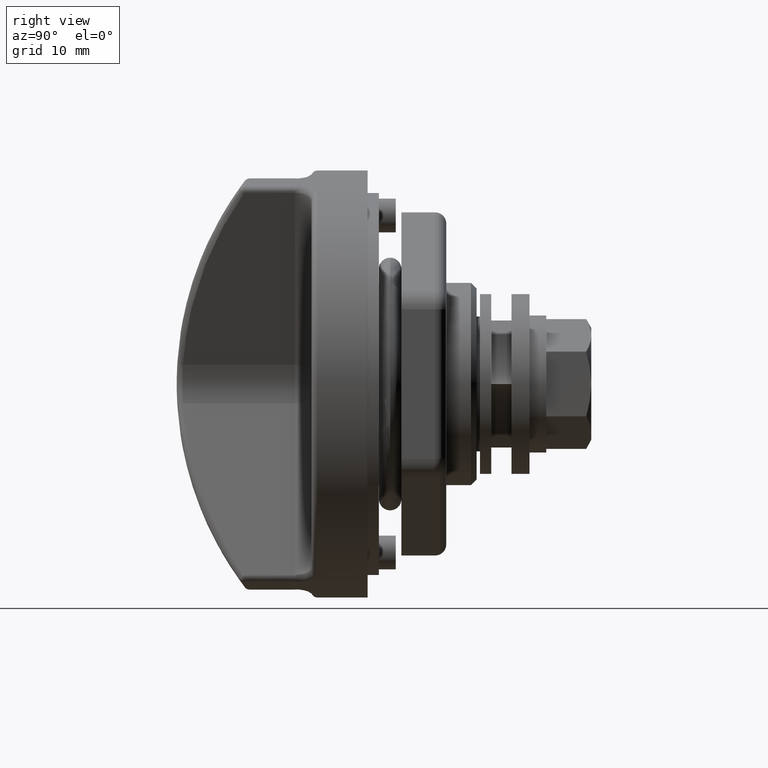
[diagram: clean part render]
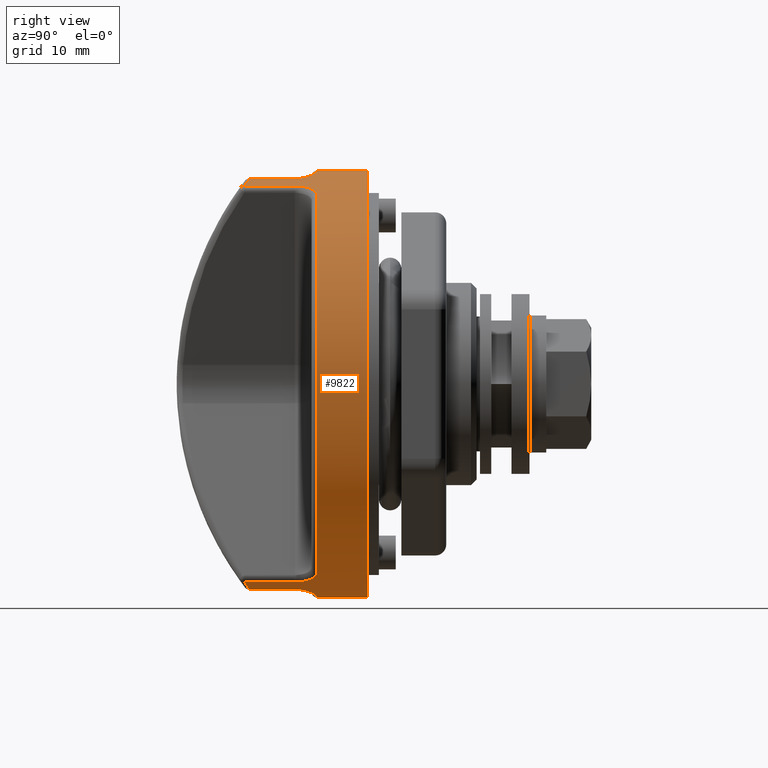
[diagram: same view with one face highlighted and labeled with its STEP entity id]
A machine part, right view. The second image highlights one B-rep face of the part: STEP entity #9822.
In plain terms, the highlighted cylindrical surface (partial cylindrical patch) has radius 19 mm, axis along (0, -1, 0).
Its self-contained STEP definition (entity closure, byte-faithful):
#7786 = CARTESIAN_POINT ( 'NONE',  ( -6.500000000000000000, -5.172454210636960400, 18.28238817657210200 ) ) ;
#7824 = DIRECTION ( 'NONE',  ( -1.000000000000000000, 0.0000000000000000000, 0.0000000000000000000 ) ) ;
#7825 = VECTOR ( 'NONE', #7824, 1000.000000000000000 ) ;
#7826 = CARTESIAN_POINT ( 'NONE',  ( 0.0000000000000000000, -5.172454210636949800, 18.28238817657210200 ) ) ;
#7827 = LINE ( 'NONE', #7826, #7825 ) ;
#7828 = CARTESIAN_POINT ( 'NONE',  ( -10.52370485962723900, -5.172454210636949800, 18.28238817657210200 ) ) ;
#7863 = CARTESIAN_POINT ( 'NONE',  ( -4.500000000000000000, 2.326828918379971000E-015, -19.00000000000000000 ) ) ;
#7926 = CARTESIAN_POINT ( 'NONE',  ( -4.499999999999949400, -1.057980804398780000, -18.97052125318445100 ) ) ;
#7927 = DIRECTION ( 'NONE',  ( 0.0000000000000000000, 0.0000000000000000000, -1.000000000000000000 ) ) ;
#7928 = DIRECTION ( 'NONE',  ( 1.000000000000000000, 0.0000000000000000000, 0.0000000000000000000 ) ) ;
#7929 = CARTESIAN_POINT ( 'NONE',  ( -4.500000000000000000, 0.0000000000000000000, 0.0000000000000000000 ) ) ;
#7930 = AXIS2_PLACEMENT_3D ( 'NONE', #7929, #7928, #7927 ) ;
#7931 = CIRCLE ( 'NONE', #7930, 19.00000000000000000 ) ;
#7936 = DIRECTION ( 'NONE',  ( -1.000000000000000000, 0.0000000000000000000, 0.0000000000000000000 ) ) ;
#7937 = VECTOR ( 'NONE', #7936, 1000.000000000000000 ) ;
#7938 = CARTESIAN_POINT ( 'NONE',  ( 0.0000000000000000000, 2.326828918379971000E-015, -19.00000000000000000 ) ) ;
#7939 = LINE ( 'NONE', #7938, #7937 ) ;
#7940 = CARTESIAN_POINT ( 'NONE',  ( 0.0000000000000000000, 2.326828918379971000E-015, -19.00000000000000000 ) ) ;
#7941 = CARTESIAN_POINT ( 'NONE',  ( 0.0000000000000000000, 0.0000000000000000000, 19.00000000000000000 ) ) ;
#7996 = B_SPLINE_CURVE_WITH_KNOTS ( 'NONE', 3,
 ( #8000, #7999, #7998, #7997, #8051, #8050, #8049, #8048, #8047, #8046, #8045, #8044, #8043, #8042, #8041, #8040 ),
 .UNSPECIFIED., .F., .F.,
 ( 4, 2, 2, 2, 2, 2, 2, 4 ),
 ( 7.949501638480626900E-018, 0.0003969742434290015400, 0.0007939484868579950500, 0.001190922730286988900, 0.001587896973715982300, 0.001984871217144975600, 0.002381845460573969600, 0.003175793947431952900 ),
 .UNSPECIFIED. ) ;
#7997 = CARTESIAN_POINT ( 'NONE',  ( -4.561416737613733100, -8.482904839476193000, -17.00168359288799600 ) ) ;
#7998 = CARTESIAN_POINT ( 'NONE',  ( -4.512419121697490700, -8.714887665408291200, -16.88394659099584400 ) ) ;
#7999 = CARTESIAN_POINT ( 'NONE',  ( -4.499999999999947600, -8.832038682267681300, -16.82299258822834500 ) ) ;
#8000 = CARTESIAN_POINT ( 'NONE',  ( -4.500000000000000000, -8.950341170607250900, -16.75981482384969800 ) ) ;
#8001 = CARTESIAN_POINT ( 'NONE',  ( -6.500000000000000000, -7.081547706978370500, -17.63098641805919800 ) ) ;
#8002 = CARTESIAN_POINT ( 'NONE',  ( -4.500000000000000000, -8.950341170607250900, -16.75981482384969800 ) ) ;
#8024 = CARTESIAN_POINT ( 'NONE',  ( -4.500000000000000000, -1.057980804398816100, 18.97052125318445100 ) ) ;
#8025 = DIRECTION ( 'NONE',  ( 0.0000000000000000000, 0.0000000000000000000, -1.000000000000000000 ) ) ;
#8026 = DIRECTION ( 'NONE',  ( 1.000000000000000000, 0.0000000000000000000, 0.0000000000000000000 ) ) ;
#8027 = CARTESIAN_POINT ( 'NONE',  ( -4.500000000000000000, 0.0000000000000000000, 0.0000000000000000000 ) ) ;
#8028 = AXIS2_PLACEMENT_3D ( 'NONE', #8027, #8026, #8025 ) ;
#8029 = CIRCLE ( 'NONE', #8028, 19.00000000000000000 ) ;
#8030 = DIRECTION ( 'NONE',  ( 0.0000000000000000000, 0.0000000000000000000, 1.000000000000000000 ) ) ;
#8031 = DIRECTION ( 'NONE',  ( -1.000000000000000000, 0.0000000000000000000, 0.0000000000000000000 ) ) ;
#8032 = AXIS2_PLACEMENT_3D ( 'NONE', #8037, #8031, #8030 ) ;
#8033 = CARTESIAN_POINT ( 'NONE',  ( -10.52370485962723900, -5.172454210636929300, -18.28238817657210200 ) ) ;
#8034 = CARTESIAN_POINT ( 'NONE',  ( -10.65968090053037000, -5.824735925476406200, -18.09784459999678300 ) ) ;
#8035 = CARTESIAN_POINT ( 'NONE',  ( -10.81672791988972200, -6.460632401283441500, -17.88037923449106600 ) ) ;
#8036 = CARTESIAN_POINT ( 'NONE',  ( -10.99049106467449900, -7.081547706978380300, -17.63098641805925100 ) ) ;
#8037 = CARTESIAN_POINT ( 'NONE',  ( 0.0000000000000000000, 0.0000000000000000000, 0.0000000000000000000 ) ) ;
#8038 = B_SPLINE_CURVE_WITH_KNOTS ( 'NONE', 3,
 ( #8036, #8035, #8034, #8033 ),
 .UNSPECIFIED., .F., .F.,
 ( 4, 4 ),
 ( 1.554006304468970700E-017, 0.002070471344884866300 ),
 .UNSPECIFIED. ) ;
#8039 = CIRCLE ( 'NONE', #8032, 19.00000000000000000 ) ;
#8040 = CARTESIAN_POINT ( 'NONE',  ( -6.500000000000000000, -7.081547706978370500, -17.63098641805919800 ) ) ;
#8041 = CARTESIAN_POINT ( 'NONE',  ( -6.231532690188552200, -7.081547706978382100, -17.63098641805925500 ) ) ;
#8042 = CARTESIAN_POINT ( 'NONE',  ( -5.965055017612910700, -7.134019726149142900, -17.61013464983361100 ) ) ;
#8043 = CARTESIAN_POINT ( 'NONE',  ( -5.601066729118507200, -7.280028154669905900, -17.55004159615589600 ) ) ;
#8044 = CARTESIAN_POINT ( 'NONE',  ( -5.483868072929706900, -7.340540465876664200, -17.52490573582914000 ) ) ;
#8045 = CARTESIAN_POINT ( 'NONE',  ( -5.265254960700640500, -7.481459407956195100, -17.46521172239184200 ) ) ;
#8046 = CARTESIAN_POINT ( 'NONE',  ( -5.164989294493501900, -7.560810271138727500, -17.43110269374799500 ) ) ;
#8047 = CARTESIAN_POINT ( 'NONE',  ( -4.981908450324988600, -7.736347391122811800, -17.35390797832040700 ) ) ;
#8048 = CARTESIAN_POINT ( 'NONE',  ( -4.898591772662730800, -7.833574137535758400, -17.31033340280935900 ) ) ;
#8049 = CARTESIAN_POINT ( 'NONE',  ( -4.756185177321929000, -8.036959011302151600, -17.21684686971850200 ) ) ;
#8050 = CARTESIAN_POINT ( 'NONE',  ( -4.696196143278835500, -8.143699609704684800, -17.16669784685799300 ) ) ;
#8051 = CARTESIAN_POINT ( 'NONE',  ( -4.598536276215922300, -8.366938749977965300, -17.05900625043967300 ) ) ;
#8052 = CARTESIAN_POINT ( 'NONE',  ( -10.99049106467449900, -7.081547706978380300, -17.63098641805925100 ) ) ;
#8053 = DIRECTION ( 'NONE',  ( -1.000000000000000000, 0.0000000000000000000, 0.0000000000000000000 ) ) ;
#8054 = VECTOR ( 'NONE', #8053, 1000.000000000000000 ) ;
#8055 = CARTESIAN_POINT ( 'NONE',  ( 0.0000000000000000000, -7.081547706978380300, -17.63098641805925100 ) ) ;
#8056 = LINE ( 'NONE', #8055, #8054 ) ;
#8074 = CARTESIAN_POINT ( 'NONE',  ( -10.99048193732492100, -7.081515091759399600, 17.63099951804159800 ) ) ;
#8075 = CARTESIAN_POINT ( 'NONE',  ( -10.81672241155523500, -6.460610094594229300, 17.88038686011909200 ) ) ;
#8076 = CARTESIAN_POINT ( 'NONE',  ( -10.65967851143213900, -5.824724464890563200, 18.09784784242632600 ) ) ;
#8077 = CARTESIAN_POINT ( 'NONE',  ( -10.52370485962723900, -5.172454210636949800, 18.28238817657210200 ) ) ;
#8078 = CARTESIAN_POINT ( 'NONE',  ( -6.500000000000000000, -5.172454210636960400, 18.28238817657210200 ) ) ;
#8079 = CARTESIAN_POINT ( 'NONE',  ( -6.392374408459284400, -5.172454210636959500, 18.28238817657210200 ) ) ;
#8080 = CARTESIAN_POINT ( 'NONE',  ( -6.287836777631071100, -5.157923587651200000, 18.28651515561581700 ) ) ;
#8081 = CARTESIAN_POINT ( 'NONE',  ( -6.084238255451048800, -5.103040190650206800, 18.30190681555405500 ) ) ;
#8082 = CARTESIAN_POINT ( 'NONE',  ( -5.984414346464866700, -5.061906257807741800, 18.31337876442684000 ) ) ;
#8083 = CARTESIAN_POINT ( 'NONE',  ( -5.707638180534432100, -4.910522465989887000, 18.35477365809098100 ) ) ;
#8084 = CARTESIAN_POINT ( 'NONE',  ( -5.546284825650616300, -4.769863426203857900, 18.39224196978623000 ) ) ;
#8085 = CARTESIAN_POINT ( 'NONE',  ( -5.274754503099078600, -4.456050378119156700, 18.47078170537099600 ) ) ;
#8086 = CARTESIAN_POINT ( 'NONE',  ( -5.160598068371452700, -4.279170184294685900, 18.51282133776749800 ) ) ;
#8087 = CARTESIAN_POINT ( 'NONE',  ( -4.968648026895251300, -3.909377873112493100, 18.59442432546580500 ) ) ;
#8088 = CARTESIAN_POINT ( 'NONE',  ( -4.889785793086903500, -3.714437727719067000, 18.63446995083788200 ) ) ;
#8089 = CARTESIAN_POINT ( 'NONE',  ( -4.694254535793593400, -3.120998814148142800, 18.74623797803752700 ) ) ;
#8090 = CARTESIAN_POINT ( 'NONE',  ( -4.616893770828570900, -2.716270433981103200, 18.80938297953608500 ) ) ;
#8091 = CARTESIAN_POINT ( 'NONE',  ( -4.519125115328158400, -1.895308736243637200, 18.90975457100647700 ) ) ;
#8092 = CARTESIAN_POINT ( 'NONE',  ( -4.499999999999948500, -1.478897923490425400, 18.94704682007329000 ) ) ;
#8093 = CARTESIAN_POINT ( 'NONE',  ( -4.500000000000000000, -1.057980804398816100, 18.97052125318445100 ) ) ;
#8094 = CARTESIAN_POINT ( 'NONE',  ( -10.99048193732492100, -7.081515091759399600, 17.63099951804159800 ) ) ;
#8095 = B_SPLINE_CURVE_WITH_KNOTS ( 'NONE', 3,
 ( #8077, #8076, #8075, #8074 ),
 .UNSPECIFIED., .F., .F.,
 ( 4, 4 ),
 ( 0.0000000000000000000, 0.002070435092573100000 ),
 .UNSPECIFIED. ) ;
#8096 = B_SPLINE_CURVE_WITH_KNOTS ( 'NONE', 3,
 ( #8093, #8092, #8091, #8090, #8089, #8088, #8087, #8086, #8085, #8084, #8083, #8082, #8081, #8080, #8079, #8078 ),
 .UNSPECIFIED., .F., .F.,
 ( 4, 2, 2, 2, 2, 2, 2, 4 ),
 ( 6.992893892674702500E-018, 0.001248851526871891400, 0.002497703053743775500, 0.003122128817179716700, 0.003746554580615657600, 0.004370980344051598800, 0.004683193225769569300, 0.004995406107487539700 ),
 .UNSPECIFIED. ) ;
#8097 = DIRECTION ( 'NONE',  ( 0.0000000000000000000, 0.0000000000000000000, 1.000000000000000000 ) ) ;
#8098 = DIRECTION ( 'NONE',  ( -1.000000000000000000, 0.0000000000000000000, 0.0000000000000000000 ) ) ;
#8099 = CARTESIAN_POINT ( 'NONE',  ( 0.0000000000000000000, 0.0000000000000000000, 0.0000000000000000000 ) ) ;
#8100 = AXIS2_PLACEMENT_3D ( 'NONE', #8099, #8098, #8097 ) ;
#8101 = CYLINDRICAL_SURFACE ( 'NONE', #8100, 19.00000000000000000 ) ;
#8102 = FACE_OUTER_BOUND ( 'NONE', #9823, .T. ) ;
#8103 = DIRECTION ( 'NONE',  ( -1.000000000000000000, 0.0000000000000000000, 0.0000000000000000000 ) ) ;
#8104 = VECTOR ( 'NONE', #8103, 1000.000000000000000 ) ;
#8105 = CARTESIAN_POINT ( 'NONE',  ( 0.0000000000000000000, 0.0000000000000000000, 19.00000000000000000 ) ) ;
#8106 = LINE ( 'NONE', #8105, #8104 ) ;
#8107 = CARTESIAN_POINT ( 'NONE',  ( -4.500000000000000000, 0.0000000000000000000, 19.00000000000000000 ) ) ;
#8187 = CARTESIAN_POINT ( 'NONE',  ( -4.971497894656037500, -3.915602177012452100, -18.59309990201595800 ) ) ;
#8188 = CARTESIAN_POINT ( 'NONE',  ( -5.162739278972170900, -4.282541776674497300, -18.51202690971488700 ) ) ;
#8189 = CARTESIAN_POINT ( 'NONE',  ( -5.276993908606415000, -4.459107750459547300, -18.47003857130825500 ) ) ;
#8190 = CARTESIAN_POINT ( 'NONE',  ( -5.548319701647474600, -4.771738472256348700, -18.39175028941541300 ) ) ;
#8191 = CARTESIAN_POINT ( 'NONE',  ( -5.709451859890410900, -4.911800050006950100, -18.35442920988993600 ) ) ;
#8192 = CARTESIAN_POINT ( 'NONE',  ( -5.985800159857846300, -5.062519656585037000, -18.31320855461224500 ) ) ;
#8193 = CARTESIAN_POINT ( 'NONE',  ( -6.085408044656847300, -5.103433235026088300, -18.30179696286992900 ) ) ;
#8194 = CARTESIAN_POINT ( 'NONE',  ( -6.288401073686171300, -5.157997328340714600, -18.28649409852293700 ) ) ;
#8195 = CARTESIAN_POINT ( 'NONE',  ( -6.392647564094541900, -5.172454210636930200, -18.28238817657210500 ) ) ;
#8200 = CARTESIAN_POINT ( 'NONE',  ( -6.500000000000000000, -5.172454210636929300, -18.28238817657210200 ) ) ;
#8201 = B_SPLINE_CURVE_WITH_KNOTS ( 'NONE', 3,
 ( #8200, #8195, #8194, #8193, #8192, #8191, #8190, #8189, #8188, #8187, #8245, #8244, #8243, #8242, #8241, #8240, #8239, #8238 ),
 .UNSPECIFIED., .F., .F.,
 ( 4, 2, 2, 2, 2, 2, 2, 2, 4 ),
 ( 0.0000000000000000000, 0.0003153921613659227500, 0.0006307843227318454900, 0.001261568645463693100, 0.001892352968195540800, 0.002523137290927388500, 0.003153921613659235000, 0.003784705936391081600, 0.005046274581854776100 ),
 .UNSPECIFIED. ) ;
#8204 = CARTESIAN_POINT ( 'NONE',  ( -6.500000000000000000, -5.172454210636929300, -18.28238817657210200 ) ) ;
#8205 = DIRECTION ( 'NONE',  ( 1.000000000000000000, 0.0000000000000000000, 0.0000000000000000000 ) ) ;
#8206 = VECTOR ( 'NONE', #8205, 1000.000000000000000 ) ;
#8207 = CARTESIAN_POINT ( 'NONE',  ( 0.0000000000000000000, -5.172454210636929300, -18.28238817657210200 ) ) ;
#8208 = LINE ( 'NONE', #8207, #8206 ) ;
#8209 = CARTESIAN_POINT ( 'NONE',  ( -10.52370485962723900, -5.172454210636929300, -18.28238817657210200 ) ) ;
#8221 = CARTESIAN_POINT ( 'NONE',  ( -6.500000000000000000, -7.081515091759399600, 17.63099951804159800 ) ) ;
#8222 = DIRECTION ( 'NONE',  ( 1.000000000000000000, 0.0000000000000000000, 0.0000000000000000000 ) ) ;
#8223 = VECTOR ( 'NONE', #8222, 1000.000000000000000 ) ;
#8224 = CARTESIAN_POINT ( 'NONE',  ( 0.0000000000000000000, -7.081515091759399600, 17.63099951804159800 ) ) ;
#8230 = LINE ( 'NONE', #8224, #8223 ) ;
#8238 = CARTESIAN_POINT ( 'NONE',  ( -4.499999999999949400, -1.057980804398780000, -18.97052125318445100 ) ) ;
#8239 = CARTESIAN_POINT ( 'NONE',  ( -4.499999999999952000, -1.479154976230353100, -18.94703248431198600 ) ) ;
#8240 = CARTESIAN_POINT ( 'NONE',  ( -4.519104676841379000, -1.896678411876875600, -18.90966736779138900 ) ) ;
#8241 = CARTESIAN_POINT ( 'NONE',  ( -4.593111299589862600, -2.515788582822422000, -18.83385343062298700 ) ) ;
#8242 = CARTESIAN_POINT ( 'NONE',  ( -4.625413336212291800, -2.720954839708193100, -18.80528937558557700 ) ) ;
#8243 = CARTESIAN_POINT ( 'NONE',  ( -4.710225217895641400, -3.128369332262434200, -18.74181979051669000 ) ) ;
#8244 = CARTESIAN_POINT ( 'NONE',  ( -4.763044886219463000, -3.331436323198572400, -18.70672478916663200 ) ) ;
#8245 = CARTESIAN_POINT ( 'NONE',  ( -4.893706418978058400, -3.724579866476211500, -18.63243207773446700 ) ) ;
#8260 = DIRECTION ( 'NONE',  ( 0.0000000000000000000, 0.0000000000000000000, -1.000000000000000000 ) ) ;
#8261 = CARTESIAN_POINT ( 'NONE',  ( -4.499999999999949400, -8.950310207359761300, 16.75983135929569900 ) ) ;
#8262 = CARTESIAN_POINT ( 'NONE',  ( -4.499999999999949400, -8.713681267096800900, 16.88619912362392800 ) ) ;
#8263 = CARTESIAN_POINT ( 'NONE',  ( -4.550809974432827000, -8.475437988924159800, 17.00669104751854400 ) ) ;
#8264 = CARTESIAN_POINT ( 'NONE',  ( -4.745289437113264300, -8.032016305816265200, 17.22054887490372000 ) ) ;
#8265 = CARTESIAN_POINT ( 'NONE',  ( -4.891435309912319300, -7.822802175571160500, 17.31590083132955400 ) ) ;
#8266 = CARTESIAN_POINT ( 'NONE',  ( -5.166032465803021400, -7.559908183089563100, 17.43149311255050200 ) ) ;
#8267 = CARTESIAN_POINT ( 'NONE',  ( -5.268609084710896600, -7.478999429869561200, 17.46626286505534900 ) ) ;
#8268 = CARTESIAN_POINT ( 'NONE',  ( -5.486485801014217700, -7.339093624370474500, 17.52550928549368700 ) ) ;
#8269 = CARTESIAN_POINT ( 'NONE',  ( -5.601946752465209100, -7.279521421124878000, 17.55025239991761800 ) ) ;
#8270 = CARTESIAN_POINT ( 'NONE',  ( -5.846156366843190200, -7.181804509605089300, 17.59046546874886400 ) ) ;
#8271 = CARTESIAN_POINT ( 'NONE',  ( -5.974836045994150500, -7.144090989131322900, 17.60575717315266100 ) ) ;
#8272 = CARTESIAN_POINT ( 'NONE',  ( -6.233922369606664100, -7.094276235051754800, 17.62588909535583400 ) ) ;
#8273 = CARTESIAN_POINT ( 'NONE',  ( -6.365759359376389700, -7.081515091759409400, 17.63099951804159500 ) ) ;
#8274 = CARTESIAN_POINT ( 'NONE',  ( -6.500000000000000000, -7.081515091759399600, 17.63099951804159800 ) ) ;
#8275 = DIRECTION ( 'NONE',  ( 1.000000000000000000, 0.0000000000000000000, 0.0000000000000000000 ) ) ;
#8276 = CARTESIAN_POINT ( 'NONE',  ( -4.500000000000000000, 0.0000000000000000000, 0.0000000000000000000 ) ) ;
#8277 = AXIS2_PLACEMENT_3D ( 'NONE', #8276, #8275, #8260 ) ;
#8278 = CIRCLE ( 'NONE', #8277, 19.00000000000000000 ) ;
#8279 = B_SPLINE_CURVE_WITH_KNOTS ( 'NONE', 3,
 ( #8274, #8273, #8272, #8271, #8270, #8269, #8268, #8267, #8266, #8265, #8264, #8263, #8262, #8261 ),
 .UNSPECIFIED., .F., .F.,
 ( 4, 2, 2, 2, 2, 2, 4 ),
 ( 1.734723475976807100E-018, 0.0003967029012413714900, 0.0007934058024827412400, 0.001190108703724110900, 0.001586811604965480700, 0.002380217407448217500, 0.003173623209930954100 ),
 .UNSPECIFIED. ) ;
#8280 = CARTESIAN_POINT ( 'NONE',  ( -4.499999999999949400, -8.950310207359761300, 16.75983135929569900 ) ) ;
#9679 = VERTEX_POINT ( 'NONE', #7786 ) ;
#9686 = VERTEX_POINT ( 'NONE', #7828 ) ;
#9688 = EDGE_CURVE ( 'NONE', #9679, #9686, #7827, .T. ) ;
#9731 = VERTEX_POINT ( 'NONE', #7863 ) ;
#9733 = EDGE_CURVE ( 'NONE', #9734, #9731, #7931, .T. ) ;
#9734 = VERTEX_POINT ( 'NONE', #7926 ) ;
#9759 = VERTEX_POINT ( 'NONE', #7941 ) ;
#9760 = VERTEX_POINT ( 'NONE', #7940 ) ;
#9762 = EDGE_CURVE ( 'NONE', #9760, #9731, #7939, .T. ) ;
#9789 = VERTEX_POINT ( 'NONE', #8002 ) ;
#9790 = ORIENTED_EDGE ( 'NONE', *, *, #9791, .T. ) ;
#9791 = EDGE_CURVE ( 'NONE', #9789, #9792, #7996, .T. ) ;
#9792 = VERTEX_POINT ( 'NONE', #8001 ) ;
#9793 = ORIENTED_EDGE ( 'NONE', *, *, #9794, .T. ) ;
#9794 = EDGE_CURVE ( 'NONE', #9792, #9795, #8056, .T. ) ;
#9795 = VERTEX_POINT ( 'NONE', #8052 ) ;
#9796 = ORIENTED_EDGE ( 'NONE', *, *, #9797, .T. ) ;
#9797 = EDGE_CURVE ( 'NONE', #9795, #9856, #8038, .T. ) ;
#9798 = ORIENTED_EDGE ( 'NONE', *, *, #9799, .T. ) ;
#9799 = EDGE_CURVE ( 'NONE', #9760, #9759, #8039, .T. ) ;
#9800 = ORIENTED_EDGE ( 'NONE', *, *, #9821, .T. ) ;
#9801 = ORIENTED_EDGE ( 'NONE', *, *, #9802, .T. ) ;
#9802 = EDGE_CURVE ( 'NONE', #9819, #9803, #8029, .T. ) ;
#9803 = VERTEX_POINT ( 'NONE', #8024 ) ;
#9804 = ORIENTED_EDGE ( 'NONE', *, *, #9805, .T. ) ;
#9805 = EDGE_CURVE ( 'NONE', #9803, #9679, #8096, .T. ) ;
#9806 = ORIENTED_EDGE ( 'NONE', *, *, #9688, .T. ) ;
#9807 = ORIENTED_EDGE ( 'NONE', *, *, #9808, .T. ) ;
#9808 = EDGE_CURVE ( 'NONE', #9686, #9809, #8095, .T. ) ;
#9809 = VERTEX_POINT ( 'NONE', #8094 ) ;
#9810 = ORIENTED_EDGE ( 'NONE', *, *, #9872, .T. ) ;
#9819 = VERTEX_POINT ( 'NONE', #8107 ) ;
#9821 = EDGE_CURVE ( 'NONE', #9759, #9819, #8106, .T. ) ;
#9822 = ADVANCED_FACE ( 'NONE', ( #8102 ), #8101, .T. ) ;
#9823 = EDGE_LOOP ( 'NONE', ( #9824, #9798, #9800, #9801, #9804, #9806, #9807, #9810, #9874, #9877, #9790, #9793, #9796, #9857, #9860, #9862 ) ) ;
#9824 = ORIENTED_EDGE ( 'NONE', *, *, #9762, .F. ) ;
#9856 = VERTEX_POINT ( 'NONE', #8209 ) ;
#9857 = ORIENTED_EDGE ( 'NONE', *, *, #9858, .T. ) ;
#9858 = EDGE_CURVE ( 'NONE', #9856, #9859, #8208, .T. ) ;
#9859 = VERTEX_POINT ( 'NONE', #8204 ) ;
#9860 = ORIENTED_EDGE ( 'NONE', *, *, #9861, .T. ) ;
#9861 = EDGE_CURVE ( 'NONE', #9859, #9734, #8201, .T. ) ;
#9862 = ORIENTED_EDGE ( 'NONE', *, *, #9733, .T. ) ;
#9872 = EDGE_CURVE ( 'NONE', #9809, #9873, #8230, .T. ) ;
#9873 = VERTEX_POINT ( 'NONE', #8221 ) ;
#9874 = ORIENTED_EDGE ( 'NONE', *, *, #9875, .T. ) ;
#9875 = EDGE_CURVE ( 'NONE', #9873, #9876, #8279, .T. ) ;
#9876 = VERTEX_POINT ( 'NONE', #8280 ) ;
#9877 = ORIENTED_EDGE ( 'NONE', *, *, #9878, .T. ) ;
#9878 = EDGE_CURVE ( 'NONE', #9876, #9789, #8278, .T. ) ;